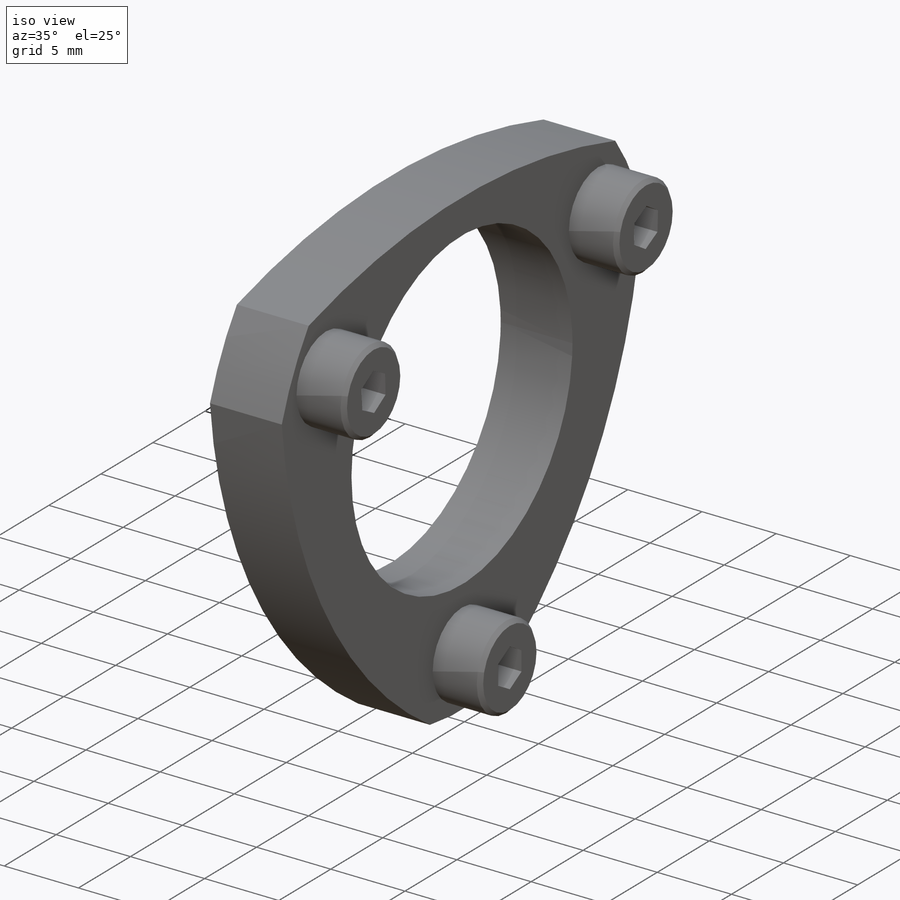
[diagram: iso view]
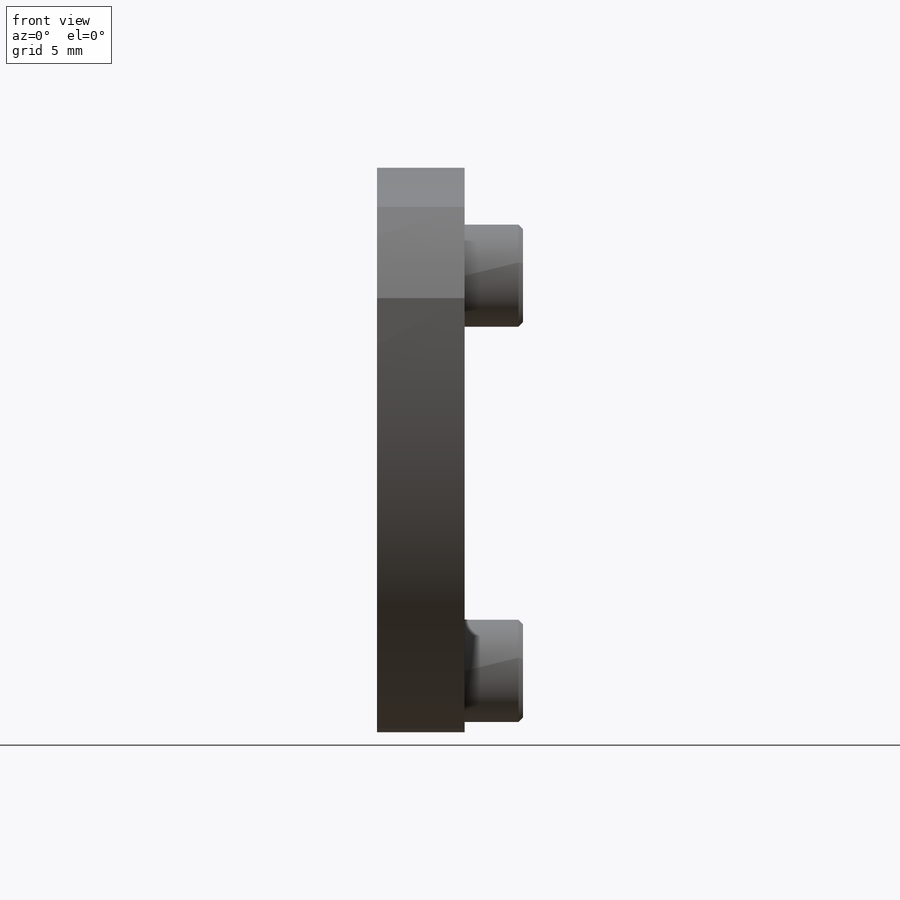
[diagram: front view]
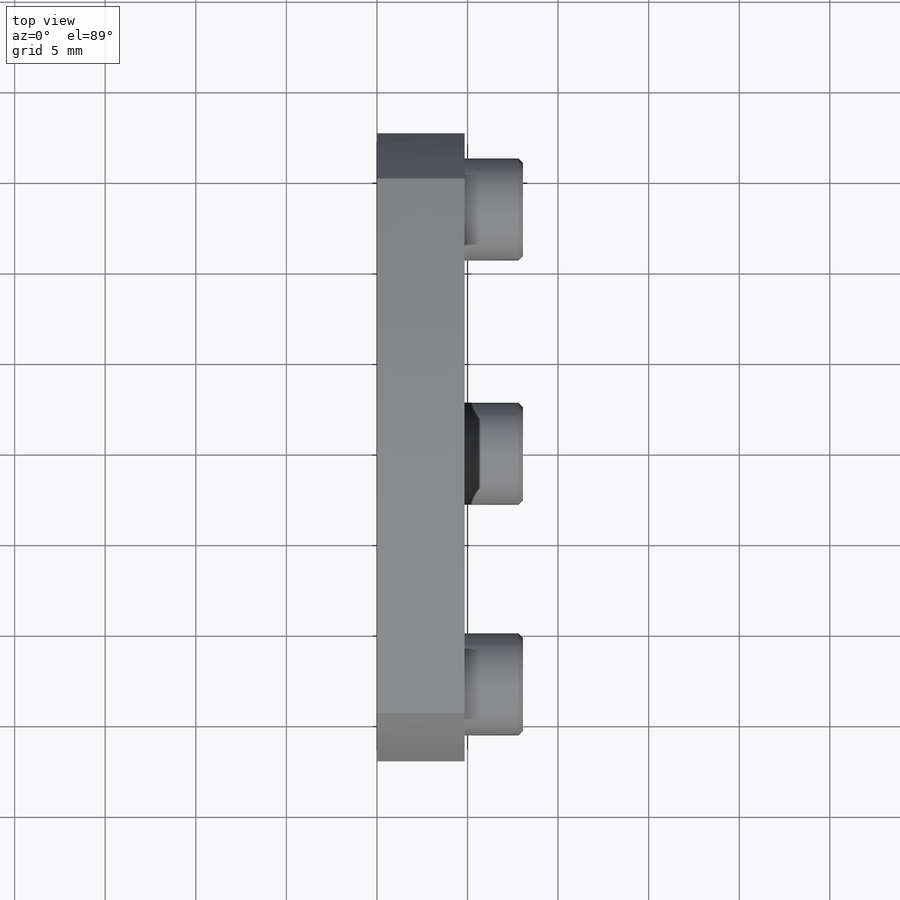
[diagram: top view]
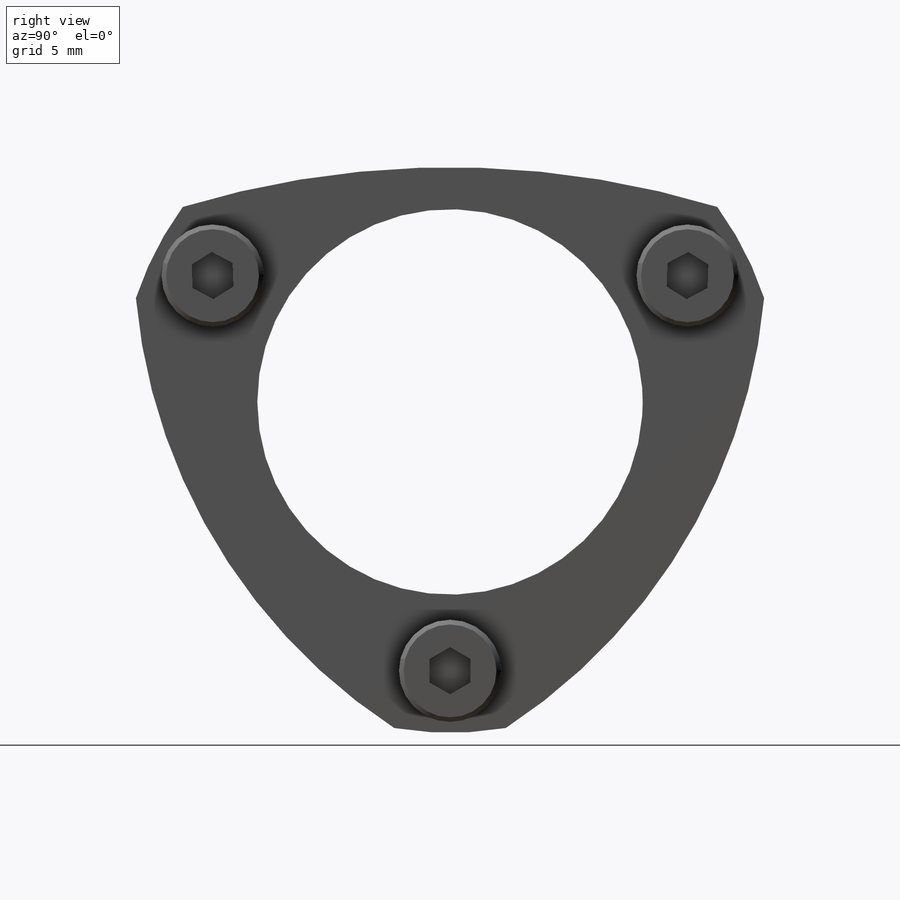
[diagram: right view]
SOLIDWORKS PART (.sldprt)
format: sldprt  version: not decoded by parser v0  size: 274,432 bytes
history: native  units: mm
features: sketch x14, plane x8, hole x3, revolve x3, cut_extrude x3, material x1, extrude x1 (+14 scaffold rows collapsed; 1 parser-record rows omitted)
feature tree (48):
  scaffold x14  (default folders/planes/origin — collapsed)
  material  "Plain Carbon Steel"
  sketch  "Sketch1"
  extrude  "Boss-Extrude1"  Depth=4.8387mm
  plane  "Plane1"
  hole  "Hole1"  Diameter=3.7592mm Depth=4.8387mm
  sketch  "Sketch3"
  sketch  "Sketch2"  dims[Diameter=3.7592mm Depth=4.8387mm]
  sketch  "Sketch4"
  revolve  "Revolve1"  Angle=360deg
  plane  "Plane2"
  hole  "Hole2"  Diameter=3.7592mm Depth=4.8387mm
  sketch  "Sketch6"
  sketch  "Sketch5"  dims[Diameter=3.7592mm Depth=4.8387mm]
  sketch  "Sketch7"
  revolve  "Revolve2"  Angle=360deg
  hole  "Hole3"  Diameter=3.7592mm Depth=4.8387mm
  sketch  "Sketch9"
  sketch  "Sketch8"  dims[Diameter=3.7592mm Depth=4.8387mm]
  sketch  "Sketch10"
  revolve  "Revolve3"  Angle=360deg
  plane  "Plane3"
  plane  "Plane4"
  plane  "Plane5"  Offset=8.0645mm
  sketch  "Sketch11"
  cut_extrude  "Cut-Extrude1"  Depth=1.6129mm
  sketch  "Sketch12"
  cut_extrude  "Cut-Extrude2"  Depth=1.6129mm
  sketch  "Sketch13"
  cut_extrude  "Cut-Extrude3"  Depth=1.6129mm
  parser-record x1  (decoder bookkeeping rows leaked as tree rows — omitted from the tree; the rows remain in map.json)
  plane  "rr XY"
  plane  "rr XZ"
  plane  "rr YZ"
  sketch  "rr"
decode coverage: 13 of 24 modeling features carry decoded parameters
note: suppression state not decoded; provenance and decode notes live in map.json
